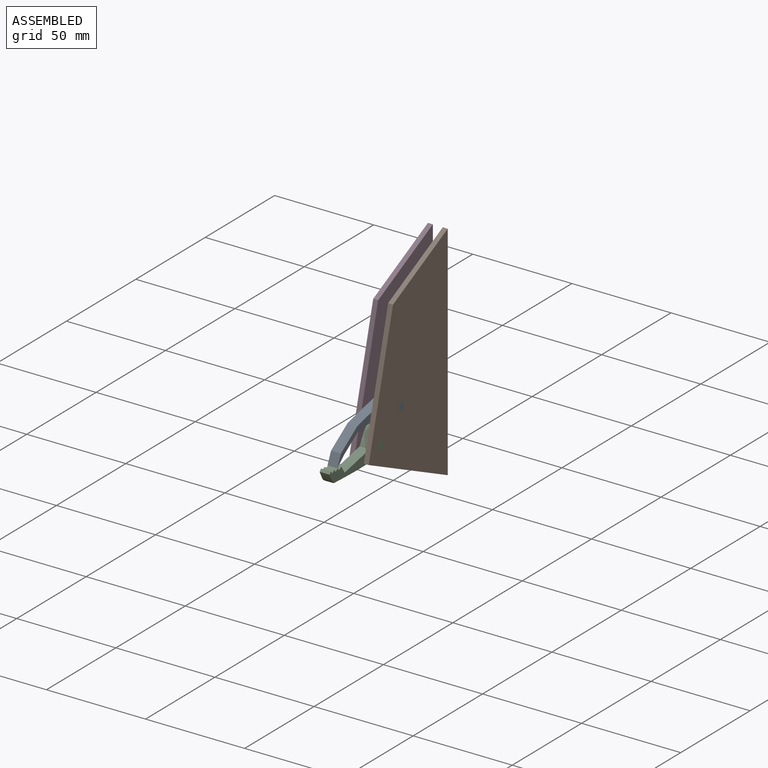
[diagram: assembled view]
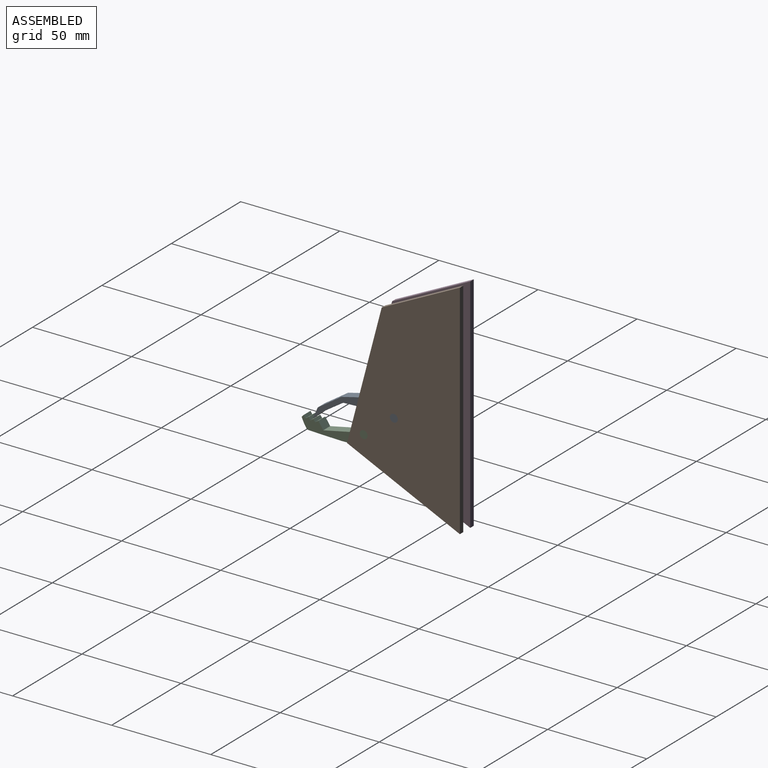
[diagram: assembled view, second angle]
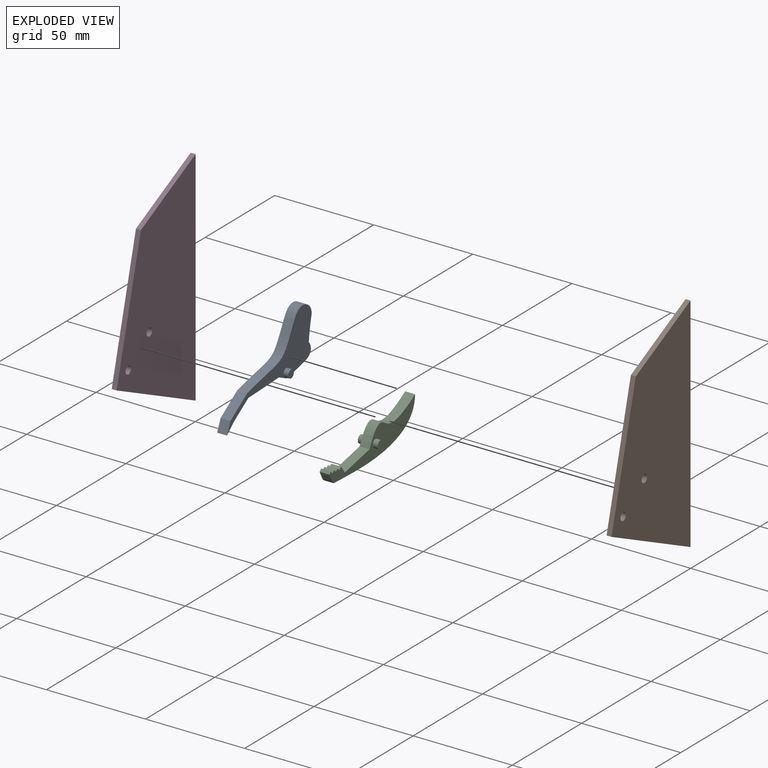
[diagram: exploded view]
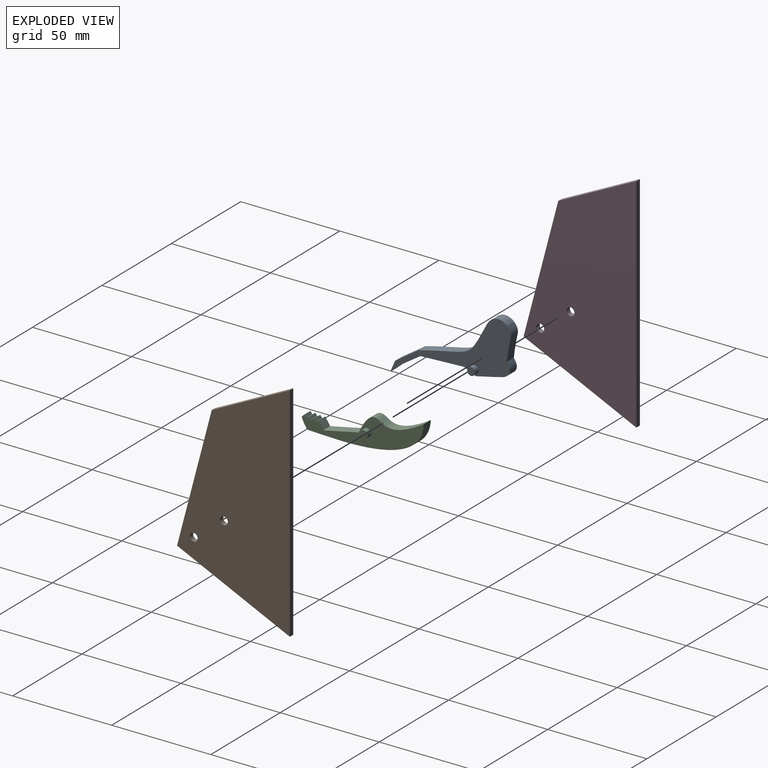
[diagram: exploded view, second angle]
ASSEMBLY  parts=4 mates=4
PART A: 17 faces, bbox 10x62.6x38.5 mm
  f0: plane 12.04x7.64mm, normal (0,-0.54,0.84), area 71.3mm2, adj f1,f10,f11,f12
  f1: plane 5.68x5mm, normal (0,-0.91,0.42), area 31.3mm2, adj f0,f2,f11,f12
  f2: plane 5.3x5mm, normal (0,0.64,-0.77), area 34.6mm2, adj f1,f3,f11,f12
  f3: plane 10.31x6.43mm, normal (0,0.53,-0.85), area 60.8mm2, adj f2,f4,f11,f12
  f4: plane 22.04x5mm, normal (0,0.02,-1), area 110.2mm2, adj f3,f5,f11,f12
  f5: plane 5.77x5mm, normal (0,-0.44,-0.9), area 32.2mm2, adj f4,f6,f11,f12
  f6: extruded ~14.12x5mm, area 72.1mm2, adj f5,f7,f11,f12
  f7: extruded ~7.33x5mm, area 46.4mm2, adj f6,f8,f11,f12
  f8: extruded ~11.75x5mm, area 60mm2, adj f7,f9,f11,f12
  f9: extruded ~12.16x6.71mm, area 88.4mm2, adj f8,f10,f11,f12
  f10: extruded ~34.98x19.99mm, area 216.2mm2, adj f0,f9,f11,f12
  f11: plane 62.61x38.52mm, normal (1,0,0), area 588mm2, adj f0,f1,f2,f3,f4,f5,f6,f7
  f12: plane 62.61x38.52mm, normal (-1,0,0), area 588mm2, adj f0,f1,f2,f3,f4,f5,f6,f7
  f13: plane 4x4mm, normal (-1,0,0), area 12.6mm2, adj f14
  f14: cylinder r=2mm len=4mm, axis (-1,0,0), area 31.4mm2, adj f12,f13
  f15: cylinder r=2mm len=4mm, axis (-1,0,0), area 31.4mm2, adj f11,f16
  f16: plane 4x4mm, normal (1,0,0), area 12.6mm2, adj f15
PART B: 8 faces, bbox 2.5x56.9x112.4 mm
  f0: plane 66.48x17.49mm, normal (0,-0.97,0.25), area 171.8mm2, adj f1,f4,f6,f7
  f1: plane 56.91x26.36mm, normal (0,-0.42,-0.91), area 156.8mm2, adj f0,f2,f6,f7
  f2: plane 112.4x2.5mm, normal (0,1,0), area 281mm2, adj f1,f4,f6,f7
  f3: cylinder r=2mm len=4mm, axis (-1,0,0), area 31.4mm2, adj f6,f7
  f4: plane 39.42x19.57mm, normal (0,-0.44,0.9), area 110mm2, adj f0,f2,f6,f7
  f5: cylinder r=2mm len=4mm, axis (-1,0,0), area 31.4mm2, adj f6,f7
  f6: plane 112.4x56.91mm, normal (1,0,0), area 4312.5mm2, adj f0,f1,f2,f3,f4,f5
  f7: plane 112.4x56.91mm, normal (-1,0,0), area 4312.5mm2, adj f0,f1,f2,f3,f4,f5
PART C: 19 faces, bbox 10x62.1x22.1 mm
  f0: plane 5x3.76mm, normal (0,0.85,0.53), area 22.1mm2, adj f1,f12,f13,f14
  f1: plane 5x1.64mm, normal (0,-0.53,0.85), area 9.6mm2, adj f0,f2,f13,f14
  f2: plane 5x1.34mm, normal (0,0.85,0.53), area 7.9mm2, adj f1,f3,f13,f14
  f3: plane 5x1.64mm, normal (0,-0.53,0.85), area 9.6mm2, adj f2,f4,f13,f14
  f4: plane 5x1.34mm, normal (0,0.85,0.53), area 7.9mm2, adj f3,f5,f13,f14
  f5: plane 5x1.64mm, normal (0,-0.53,0.85), area 9.6mm2, adj f4,f6,f13,f14
  f6: plane 5x1.34mm, normal (0,0.85,0.53), area 7.9mm2, adj f5,f7,f13,f14
  f7: plane 5x1.1mm, normal (0,-0.73,0.68), area 7.5mm2, adj f6,f8,f13,f14
  f8: extruded ~5.15x5mm, area 30.1mm2, adj f7,f9,f13,f14
  f9: extruded ~59.22x17.14mm, area 336.1mm2, adj f8,f10,f13,f14
  f10: extruded ~24.88x5.86mm, area 134.4mm2, adj f9,f11,f13,f14
  f11: extruded ~8.72x8.42mm, area 63.5mm2, adj f10,f12,f13,f14
  f12: plane 18.07x5mm, normal (0,-0.17,0.99), area 91.6mm2, adj f0,f11,f13,f14
  f13: plane 62.14x22.12mm, normal (1,0,0), area 432.6mm2, adj f0,f1,f2,f3,f4,f5,f6,f7
  f14: plane 62.14x22.12mm, normal (-1,0,0), area 432.6mm2, adj f0,f1,f2,f3,f4,f5,f6,f7
  f15: plane 4x4mm, normal (-1,0,0), area 12.6mm2, adj f16
  f16: cylinder r=2mm len=4mm, axis (-1,0,0), area 31.4mm2, adj f14,f15
  f17: cylinder r=2mm len=4mm, axis (-1,0,0), area 31.4mm2, adj f13,f18
  f18: plane 4x4mm, normal (1,0,0), area 12.6mm2, adj f17
PART D: 8 faces, bbox 2.5x56.9x112.4 mm
  f0: plane 66.48x17.49mm, normal (0,-0.97,0.25), area 171.8mm2, adj f1,f4,f6,f7
  f1: plane 56.91x26.36mm, normal (0,-0.42,-0.91), area 156.8mm2, adj f0,f2,f6,f7
  f2: plane 112.4x2.5mm, normal (0,1,0), area 281mm2, adj f1,f4,f6,f7
  f3: cylinder r=2mm len=4mm, axis (1,0,0), area 31.4mm2, adj f6,f7
  f4: plane 39.42x19.57mm, normal (0,-0.44,0.9), area 110mm2, adj f0,f2,f6,f7
  f5: cylinder r=2mm len=4mm, axis (1,0,0), area 31.4mm2, adj f6,f7
  f6: plane 112.4x56.91mm, normal (-1,0,0), area 4312.5mm2, adj f0,f1,f2,f3,f4,f5
  f7: plane 112.4x56.91mm, normal (1,0,0), area 4312.5mm2, adj f0,f1,f2,f3,f4,f5
PLACE A rot(axis=(1,0,0),1.5deg) t=(13.1,15.21,-0.01)mm
PLACE B t=(13.1,15.3,0.38)mm fixed
PLACE C rot(axis=(1,0,0),2.4deg) t=(13.1,14.65,0.39)mm
PLACE D t=(13.1,15.3,0.38)mm
MATE revolute C.f16 <-> B.f3  axis (-1,0,0) through (18.1,14.8,-14.85)mm
MATE revolute C.f16 <-> D.f3  axis (-1,0,0) through (8.1,14.8,-14.85)mm
MATE revolute A.f14 <-> D.f5  axis (-1,0,0) through (8.1,30.03,-3.3)mm
MATE revolute A.f14 <-> B.f5  axis (1,0,0) through (18.1,30.03,-3.3)mm
